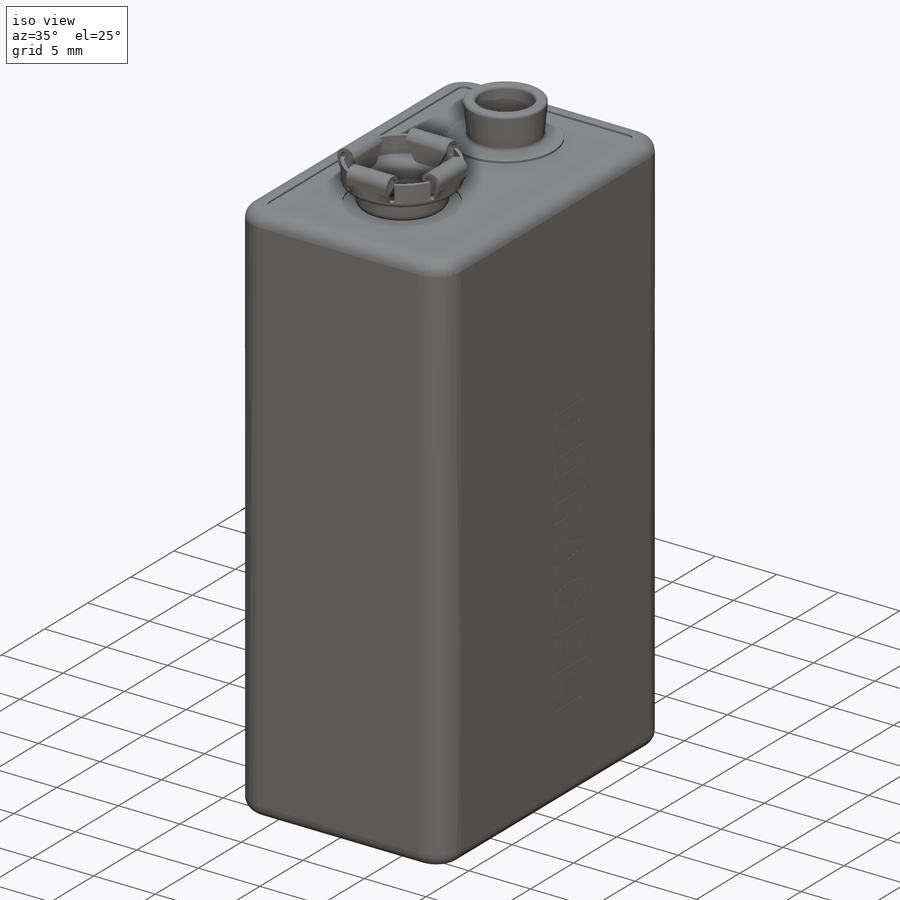
[diagram: iso view]
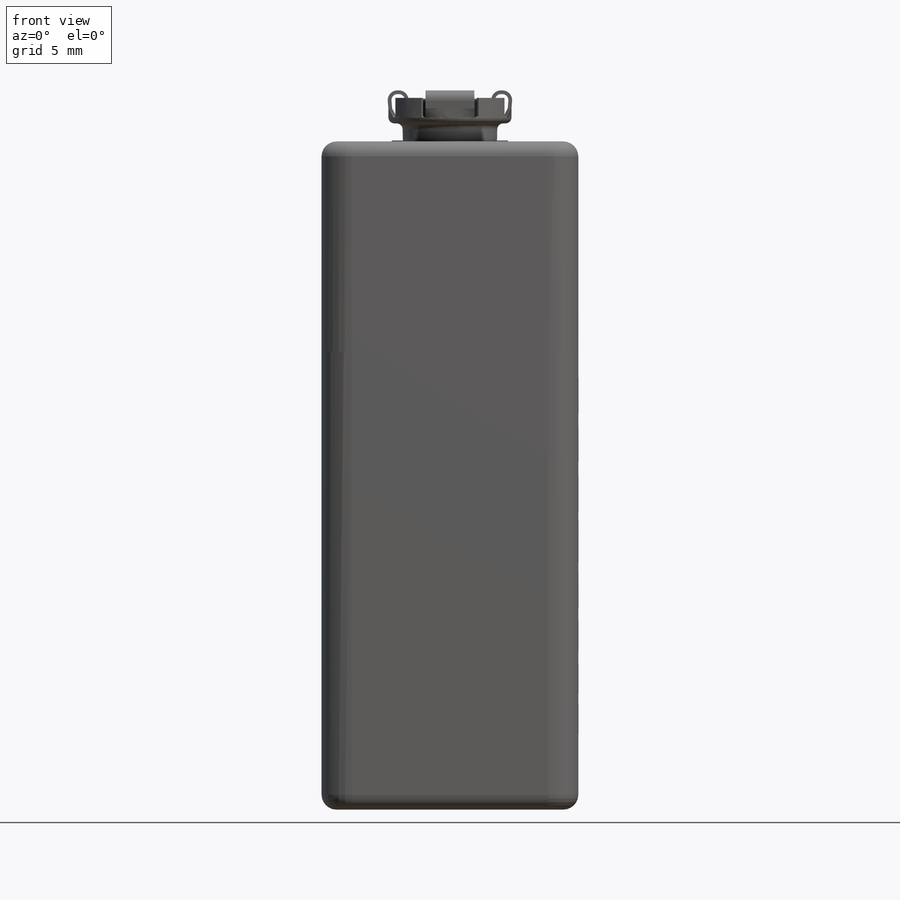
[diagram: front view]
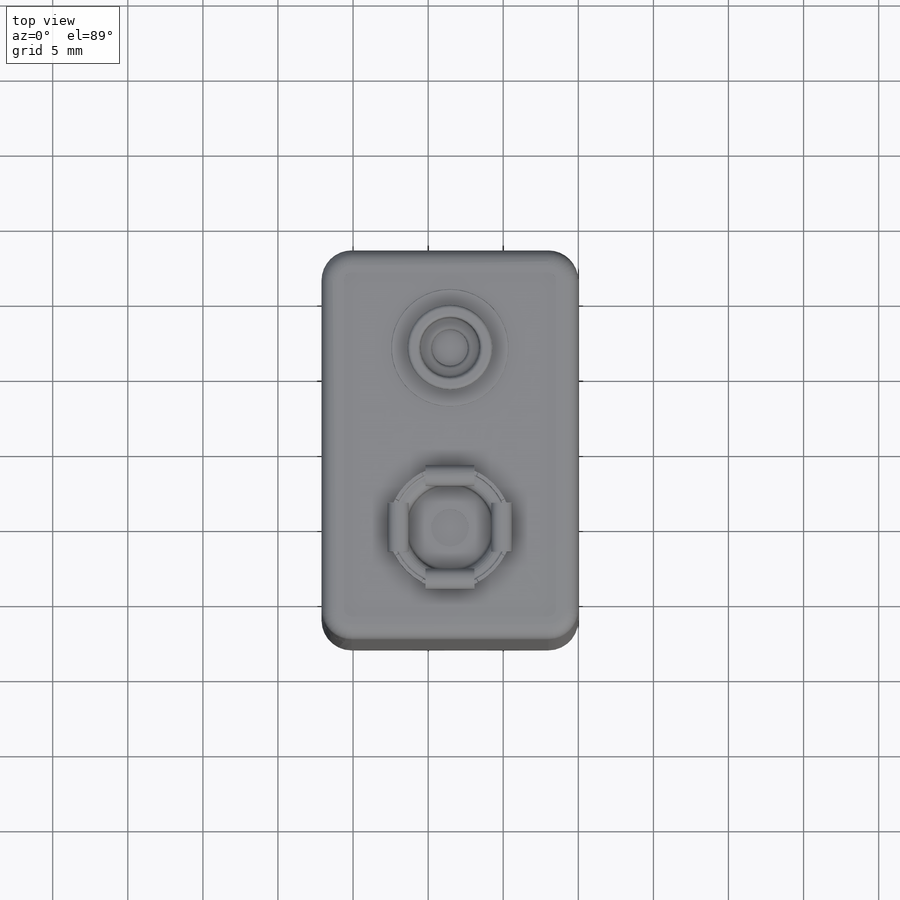
[diagram: top view]
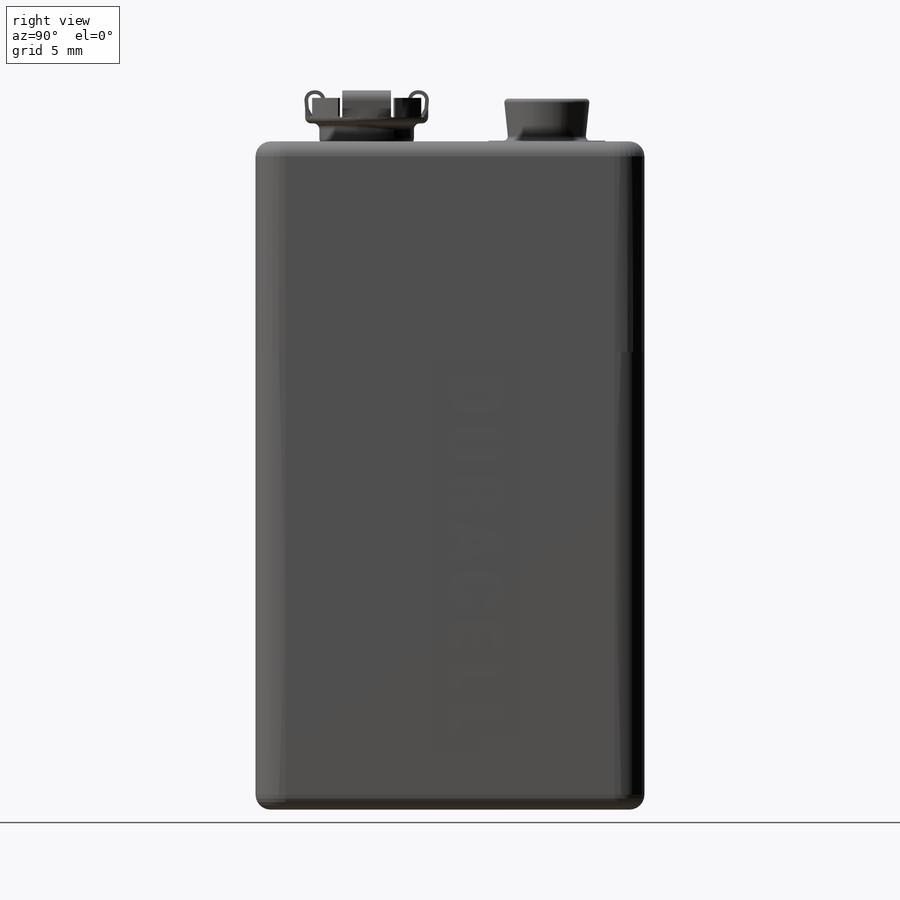
[diagram: right view]
SOLIDWORKS PART (.sldprt)
format: sldprt  version: not decoded by parser v0  size: 1,843,712 bytes
history: native  units: mm
features: sketch x16, fillet x5, cut_extrude x4, extrude x3, plane x2, revolve x2, pattern_circular x2, material x1, cut_revolve x1 (+11 scaffold rows collapsed)
feature tree (47):
  scaffold x11  (default folders/planes/origin — collapsed)
  material  "Material <not specified>"
  sketch  "Sketch1"  dims[D3=2.0mm D1=17.1mm D2=25.9mm]
  extrude  "Boss-Extrude1"  Depth=14mm
  sketch  "Sketch2"  dims[D5=0.5mm D1=1.5mm D2=1.5mm D3=1.5mm D4=1.5mm]
  cut_extrude  "Cut-Extrude1"  Depth=0.15mm
  fillet  "Fillet6"  Radius=1mm
  plane  "Plane2"  Offset=0.0001mm
  sketch  "Sketch16"
  extrude  "Boss-Extrude3"  Depth=30.5mm
  plane  "Plane1"  Offset=8.55mm
  sketch  "Sketch4"  dims[c1.D9=0.3mm c1.D10=0.25mm c1.D12=0.25mm c1.D13=0.25mm c1.D14=0.05mm c1.D1=6.5mm c1.D2=3.0mm c1.D3=2.85mm c1.D4=3.9mm c1.D5=0.2mm c1.D6=2.0mm c1.D7=2.5mm c1.D8=1.2mm c1.D11=2.9mm c2.D3=2.58mm]
  revolve  "Revolve1"  Angle=360deg
  sketch  "Sketch5"  dims[D1=12.0mm D2=0.15mm D3=0.15mm D4=4.0mm]
  cut_revolve  "Cut-Revolve1"  Angle=360deg
  sketch  "Sketch6"  dims[c1.D2=0.5mm c1.D9=0.4mm c1.D10=0.4mm c1.D12=0.15mm c1.D1=12.0mm c1.D3=3.15mm c1.D4=1.25mm c1.D5=4.1mm c1.D6=3.2mm c1.D7=0.25mm c1.D8=1.0mm c1.D11=0.25mm c2.D12=0.25mm c2.D13=0.25mm]
  revolve  "Revolve2"  Angle=360deg
  sketch  "Sketch7"  dims[c1.D1=1.9mm c1.D2=0.5mm c1.D3=0.25mm c2.D3=~27.607668deg]
  cut_extrude  "Cut-Extrude4"  Depth=1.3mm
  sketch  "Sketch19"  dims[D5=0.5mm D1=2.0mm D2=2.0mm D3=2.0mm D4=2.0mm]
  cut_extrude  "Cut-Extrude6"  Depth=0.15mm
  fillet  "Fillet3"  Radius=0.1mm
  pattern_circular  "CirPattern4"  Count=4 Angle=360deg
  sketch  "Sketch9"  dims[c1.D9=0.4mm c1.D10=0.65mm c1.D1=2.75mm c1.D2=0.5mm c1.D3=4.1mm c1.D4=0.25mm c1.D5=0.25mm c1.D6=0.25mm c2.D3=4.2mm c2.D6=0.6mm c2.D7=4.1mm c2.D8=0.25mm]
  extrude  "Boss-Extrude2"  Depth=3.25mm
  sketch  "Sketch10"  dims[c1.D3=3.85mm c1.D1=3.25mm c1.D2=1.625mm c2.D3=0.3mm c2.D4=~1.525915mm c2.D5=~3.051829mm]
  sketch  "Sketch11"
  fillet  "Fillet4"  Radius=0.1mm
  sketch  "Sketch12"  dims[D1=1.8mm D2=0.725mm]
  cut_extrude  "Cut-Extrude5"  Depth=0.25mm
  fillet  "Fillet5"  Radius=0.5mm
  pattern_circular  "CirPattern6"  Count=4 Angle=360deg
  fillet  "Fillet7"  Radius=1mm
  sketch  "Sketch13"  dims[c1.D1=0.0mm c1.D2=25.0mm c1.D3=0.0mm c2.D1=4.0mm c3.D1=0.01mm]
  sketch  "Sketch14"  dims[c1.D1=9.0mm c1.D2=0.0mm c1.D3=8.5mm c2.D2=20.0mm]
  sketch  "Sketch17"  dims[D1=8.0mm D2=6.0mm D3=2.0mm]
  sketch  "Sketch18"  dims[D1=4.0mm D2=4.0mm D3=1.0mm D4=1.0mm D5=1.5mm D6=1.5mm D7=2.0mm D8=6.0mm]
decode coverage: 31 of 33 modeling features carry decoded parameters
note: ~ marks probable driven/reference dimensions
note: suppression state not decoded; provenance and decode notes live in map.json
